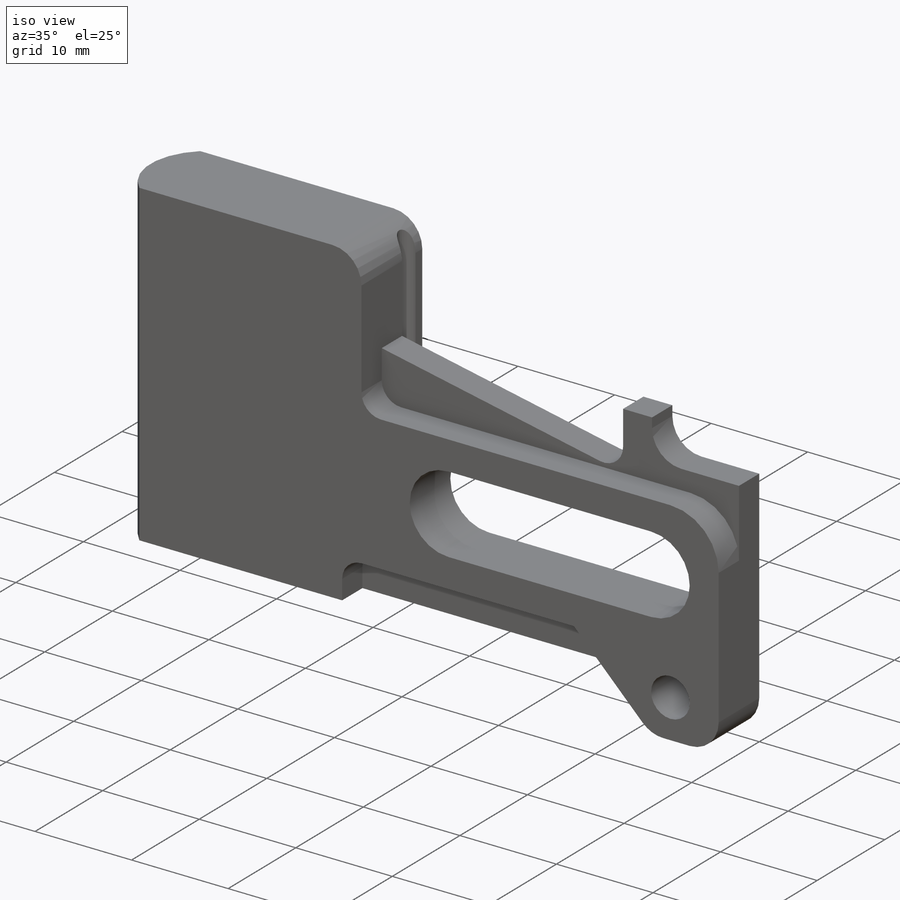
[diagram: iso view]
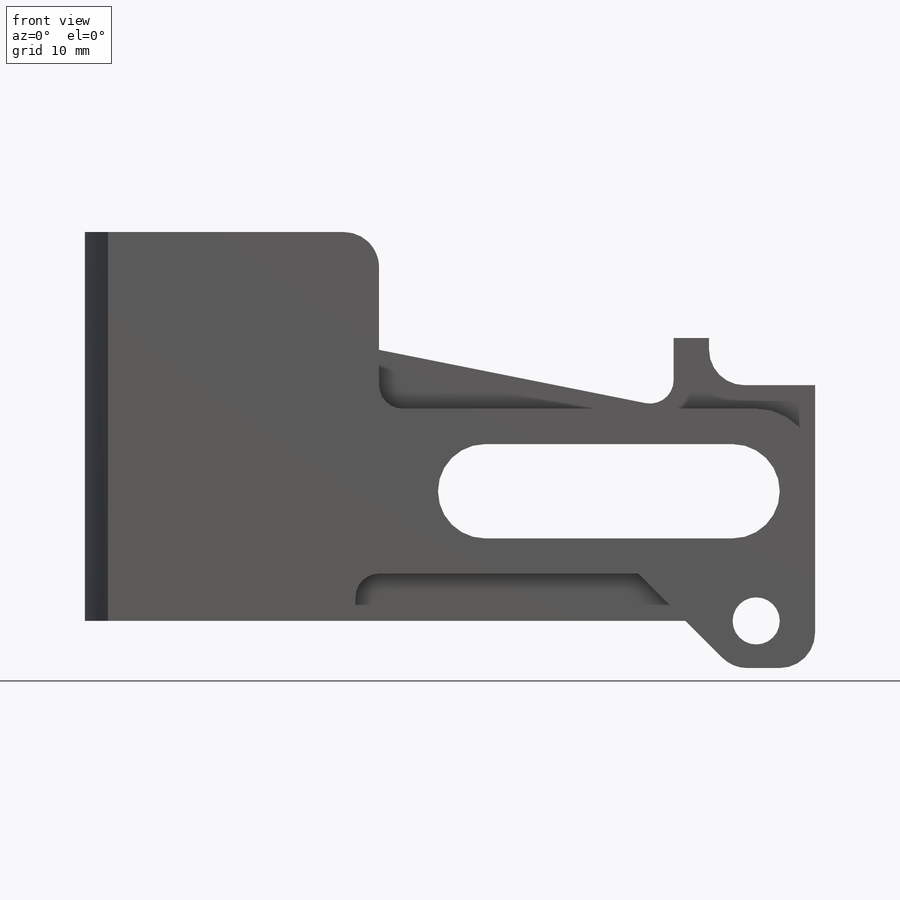
[diagram: front view]
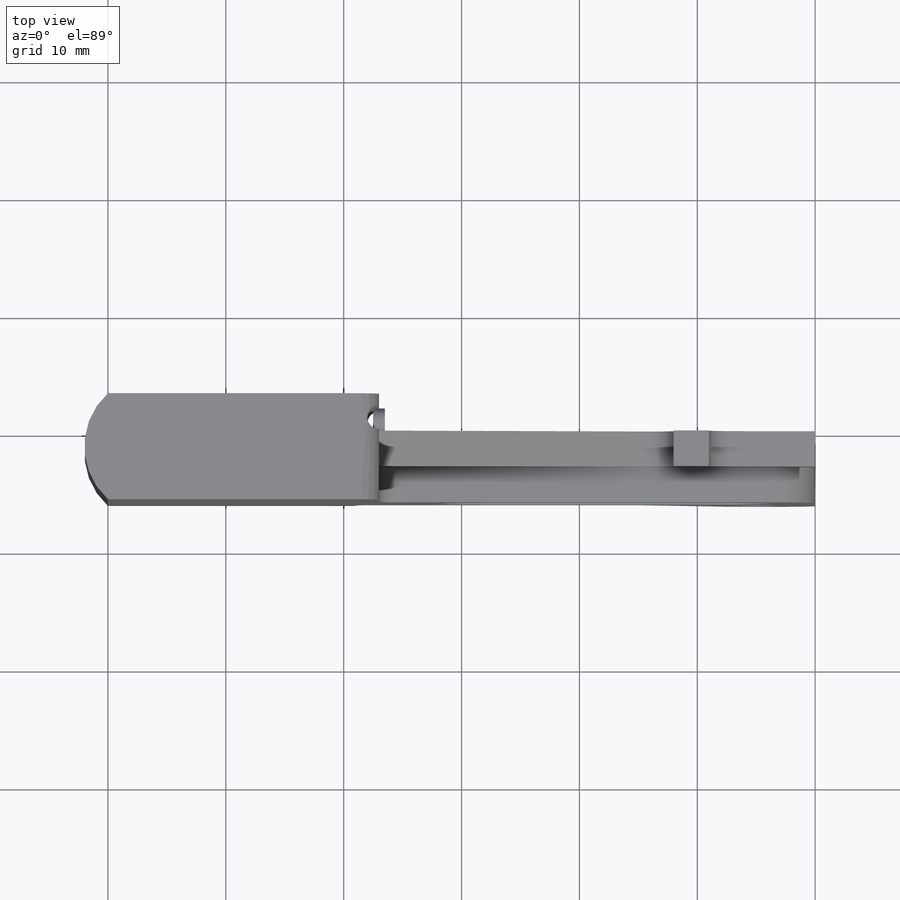
[diagram: top view]
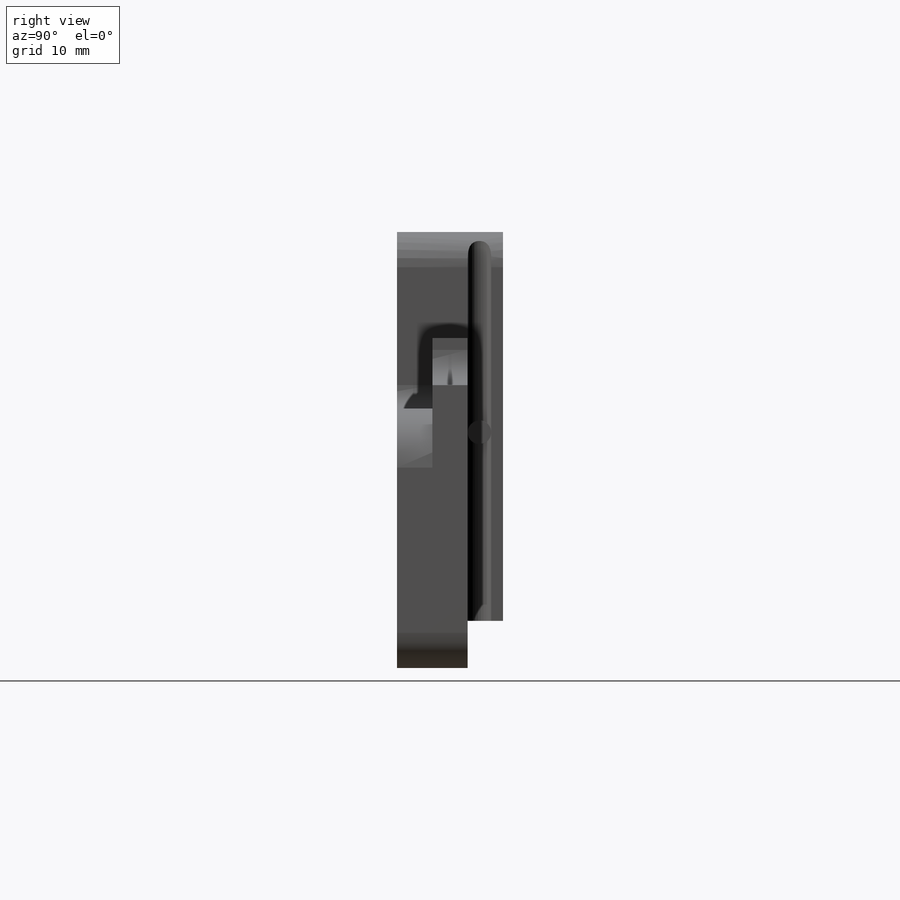
[diagram: right view]
SOLIDWORKS PART (.sldprt)
format: sldprt  version: not decoded by parser v0  size: 417,280 bytes
history: native  units: mm
features: sketch x10, extrude x6, fillet x5, plane x4, cut_extrude x3, material x1 (+12 scaffold rows collapsed)
feature tree (41):
  scaffold x12  (default folders/planes/origin — collapsed)
  material  "Matériau <non spécifié>"
  plane  "Face"
  plane  "Dessus"
  plane  "Droite"
  sketch  "Esquisse1"  dims[c1.D1=33.0mm c1.D2=23.0mm c1.D3=60.0mm c1.D4=7.0mm c1.D5=14.0mm c1.D6=15.0mm c1.D7=22.0mm c1.D8=7.0mm c2.D8=135.0deg c2.D9=24.0mm]
  extrude  "Extrusion1"  Depth=6mm
  sketch  "Esquisse2"  dims[c1.D1=4.0mm c2.D1=3.0mm]
  sketch  "Esquisse3"  dims[D1=21.0mm D2=8.0mm D3=3.0mm D4=7.0mm]
  cut_extrude  "Enlèv. mat.-Extru.1"  [1 undecoded]
  sketch  "Esquisse4"  dims[D1=25.0mm D2=5.0mm]
  extrude  "Nervure2"  Depth=3mm
  fillet  "Congé1"  Radius=2mm
  fillet  "Congé3"  Radius=5mm
  sketch  "Esquisse5"  dims[D1=3.0mm D2=6.0mm D3=2.0mm]
  extrude  "Nervure4"  Depth=3mm
  fillet  "Congé4"  Radius=3mm
  fillet  "Congé5"  Radius=2mm
  sketch  "Esquisse6"
  extrude  "Extrusion2"  Depth=3mm
  sketch  "Esquisse8"  dims[D1=2.0mm]
  extrude  "Extrusion3"  [1 undecoded]
  fillet  "Congé7"  Radius=3mm
  sketch  "Esquisse9"  dims[D1=2.0mm D2=1.0mm]
  cut_extrude  "Enlèv. mat.-Extru.2"  [1 undecoded]
  sketch  "Esquisse10"  dims[c1.D1=4.0mm c1.D2=5.0mm c1.D3=3.0mm c1.D4=8.0mm c2.D3=7.0mm c2.D4=11.0mm c2.D5=2.0mm]
  cut_extrude  "Enlèv. mat.-Extru.3"  [1 undecoded]
  plane  "Plan1"  Offset=0.5mm
  sketch  "Esquisse14"  dims[D1=16.0mm]
  extrude  "Extrusion11"  Depth=1mm
decode coverage: 19 of 24 modeling features carry decoded parameters
note: 4 parameter values undecoded
summary: no parameter record found for 4 features
note: suppression state not decoded; provenance and decode notes live in map.json
